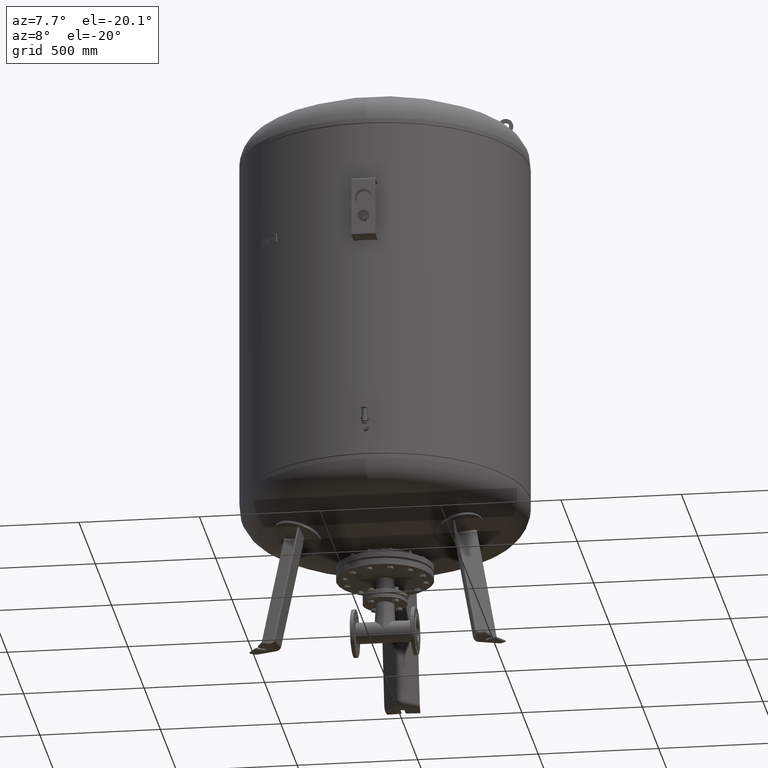
[diagram: clean part render]
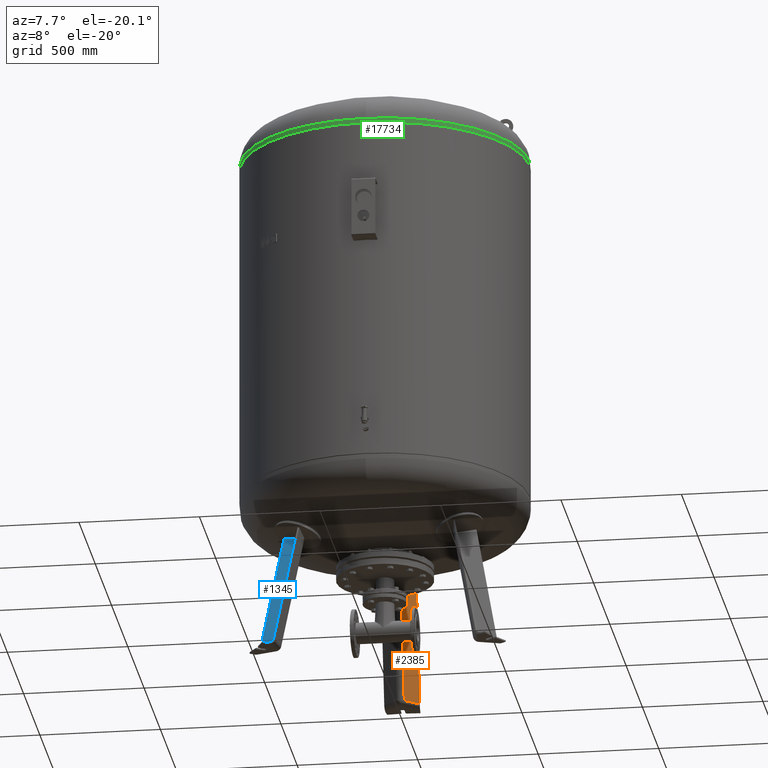
[diagram: same view with three faces highlighted in distinct colors, each labeled with its STEP entity id]
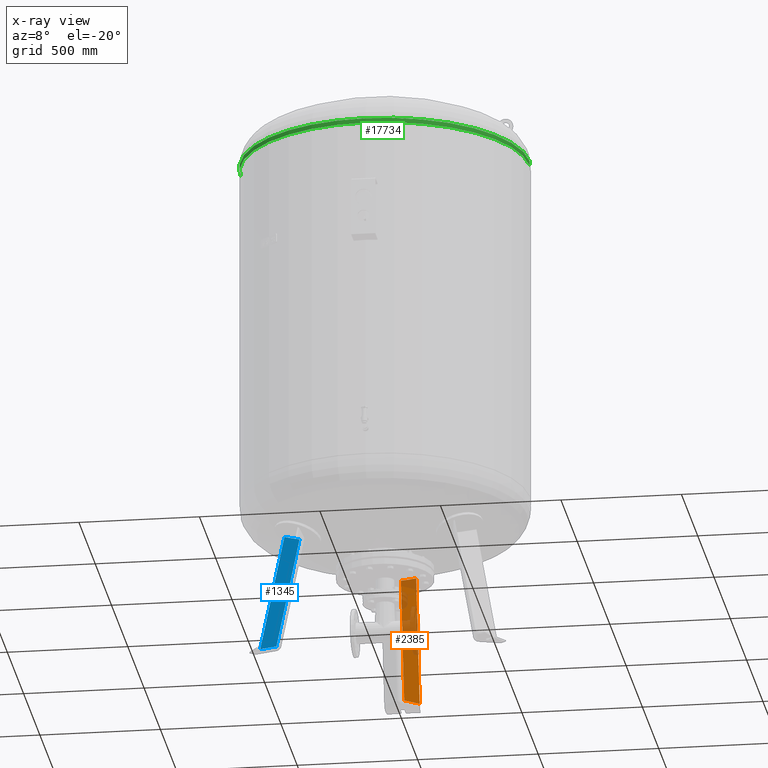
[diagram: x-ray of the same camera — body ghosted, the three highlighted faces saturated]
A machine part, auxiliary view with three faces highlighted in distinct colors.
The next image is the same camera in x-ray (body ghosted, the three faces saturated) — at least one of them is partly hidden behind the body in this view.
Their STEP definitions:

[orange] entity #2385 — the highlighted planar face has unit normal (0.6455, -0.7471, -0.1588).
#2238=CARTESIAN_POINT('',(16.136450826554498,366.118966807270510,507.262855992482800));
#2239=VERTEX_POINT('',#2238);
#2255=CARTESIAN_POINT('',(73.499999999999943,410.639984842271190,530.964625467244790));
#2256=VERTEX_POINT('',#2255);
#2257=CARTESIAN_POINT('',(73.499999999999943,410.639984842271190,530.964625467244790));
#2258=CARTESIAN_POINT('',(62.858036945115671,402.511835181547040,525.949831965368960));
#2259=CARTESIAN_POINT('',(52.229069748678569,394.323812316031930,521.269541988921900));
#2260=CARTESIAN_POINT('',(35.915460153680954,381.644042917188870,514.615776682243900));
#2261=CARTESIAN_POINT('',(30.188304126259531,377.170898528650180,512.381986610263770));
#2262=CARTESIAN_POINT('',(21.696926014053837,370.503142454935470,509.237729410371290));
#2263=CARTESIAN_POINT('',(18.913416046005374,368.311641721589750,508.234229947279740));
#2264=CARTESIAN_POINT('',(16.136450826554498,366.118966807270510,507.262855992482800));
#2265=B_SPLINE_CURVE_WITH_KNOTS('',3,(#2257,#2258,#2259,#2260,#2261,#2262,#2263,#2264),.UNSPECIFIED.,.F.,.U.,(4,2,2,4),(536.762478861198470,540.755951889067660,542.927906845961390,543.990518214376830),.UNSPECIFIED.);
#2266=EDGE_CURVE('',#2256,#2239,#2265,.T.);
#2325=CARTESIAN_POINT('',(73.500000000000000,519.029946471096990,21.029948423057292));
#2326=VERTEX_POINT('',#2325);
#2327=CARTESIAN_POINT('',(73.500000000000000,519.029946471096990,21.029948423057292));
#2328=DIRECTION('',(-1.090360E-016,-0.207911690817760,0.978147600733806));
#2329=VECTOR('',#2328,521.326921071661220);
#2330=LINE('',#2327,#2329);
#2331=EDGE_CURVE('',#2326,#2256,#2330,.T.);
#2362=CARTESIAN_POINT('',(73.500000000000000,532.326896435301360,-41.527282742766886));
#2363=DIRECTION('',(0.645458033062182,-0.747104967402683,-0.158802063077709));
#2364=DIRECTION('',(1.070315E-016,0.207911690817760,-0.978147600733806));
#2365=AXIS2_PLACEMENT_3D('',#2362,#2363,#2364);
#2366=PLANE('',#2365);
#2367=CARTESIAN_POINT('',(16.136450826554547,469.470961811045530,21.029948423057292));
#2368=VERTEX_POINT('',#2367);
#2369=CARTESIAN_POINT('',(16.136450826554547,469.470961811045530,21.029948423057292));
#2370=DIRECTION('',(-1.000572E-016,-0.207911690817760,0.978147600733805));
#2371=VECTOR('',#2370,497.095639967479310);
#2372=LINE('',#2369,#2371);
#2373=EDGE_CURVE('',#2368,#2239,#2372,.T.);
#2374=ORIENTED_EDGE('',*,*,#2373,.F.);
#2375=CARTESIAN_POINT('',(73.500000000000000,519.029946471096990,21.029948423057292));
#2376=DIRECTION('',(-0.756707249513243,-0.653753882232529,0.0));
#2377=VECTOR('',#2376,75.806792138366532);
#2378=LINE('',#2375,#2377);
#2379=EDGE_CURVE('',#2326,#2368,#2378,.T.);
#2380=ORIENTED_EDGE('',*,*,#2379,.F.);
#2381=ORIENTED_EDGE('',*,*,#2331,.T.);
#2382=ORIENTED_EDGE('',*,*,#2266,.T.);
#2383=EDGE_LOOP('',(#2374,#2380,#2381,#2382));
#2384=FACE_OUTER_BOUND('',#2383,.T.);
#2385=ADVANCED_FACE('',(#2384),#2366,.T.);

[blue] entity #1345 — the highlighted planar face has unit normal (-0.3243, -0.9325, 0.1588).
#1139=CARTESIAN_POINT('',(-420.404321888330460,-224.087779953756690,27.029948423057292));
#1140=VERTEX_POINT('',#1139);
#1212=CARTESIAN_POINT('',(-331.471886874801380,-172.742614659006900,510.149969666713160));
#1213=VERTEX_POINT('',#1212);
#1294=CARTESIAN_POINT('',(-397.884990698560960,-145.613083205598430,533.843746499036000));
#1295=VERTEX_POINT('',#1294);
#1303=CARTESIAN_POINT('',(-331.471886874801380,-172.742614659006900,510.149969666713160));
#1304=CARTESIAN_POINT('',(-333.488976274067340,-171.938159054882930,510.754973838816850));
#1305=CARTESIAN_POINT('',(-335.506731719872500,-171.131433109522730,511.371950061965830));
#1306=CARTESIAN_POINT('',(-344.335298495005020,-167.593311024787030,514.120476420435810));
#1307=CARTESIAN_POINT('',(-351.152787533789650,-164.839591880331110,516.369477981931820));
#1308=CARTESIAN_POINT('',(-371.293373231930840,-156.647038447854580,523.350498082422520));
#1309=CARTESIAN_POINT('',(-384.619296430347620,-151.152545046034220,528.403592446426050));
#1310=CARTESIAN_POINT('',(-397.884990698560960,-145.613083205598430,533.843746499036000));
#1311=B_SPLINE_CURVE_WITH_KNOTS('',3,(#1303,#1304,#1305,#1306,#1307,#1308,#1309,#1310),.UNSPECIFIED.,.F.,.U.,(4,2,2,4),(5.937335443723129,6.588195328792665,8.784260438390220,13.073486937020286),.UNSPECIFIED.);
#1312=EDGE_CURVE('',#1213,#1295,#1311,.T.);
#1317=CARTESIAN_POINT('',(-412.882795790844680,-238.377993293609340,-41.527282742766886));
#1318=DIRECTION('',(-0.324282864533178,-0.932535537409926,0.158802063077708));
#1319=DIRECTION('',(0.180056805991956,0.103955845408880,0.978147600733806));
#1320=AXIS2_PLACEMENT_3D('',#1317,#1318,#1319);
#1321=PLANE('',#1320);
#1322=CARTESIAN_POINT('',(-491.178961512120400,-199.476382368575910,27.029948423057292));
#1323=VERTEX_POINT('',#1322);
#1324=CARTESIAN_POINT('',(-491.178961512120400,-199.476382368575910,27.029948423057292));
#1325=DIRECTION('',(0.180056805991956,0.103955845408880,0.978147600733805));
#1326=VECTOR('',#1325,518.136319810800960);
#1327=LINE('',#1324,#1326);
#1328=EDGE_CURVE('',#1323,#1295,#1327,.T.);
#1329=ORIENTED_EDGE('',*,*,#1328,.F.);
#1330=CARTESIAN_POINT('',(-420.404321888330460,-224.087779953756690,27.029948423057292));
#1331=DIRECTION('',(-0.944521094592691,0.328450760190053,0.0));
#1332=VECTOR('',#1331,74.931772333057623);
#1333=LINE('',#1330,#1332);
#1334=EDGE_CURVE('',#1140,#1323,#1333,.T.);
#1335=ORIENTED_EDGE('',*,*,#1334,.F.);
#1336=CARTESIAN_POINT('',(-331.471886874801380,-172.742614659006900,510.149969666713160));
#1337=DIRECTION('',(-0.180056805991956,-0.103955845408880,-0.978147600733806));
#1338=VECTOR('',#1337,493.913209909444730);
#1339=LINE('',#1336,#1338);
#1340=EDGE_CURVE('',#1213,#1140,#1339,.T.);
#1341=ORIENTED_EDGE('',*,*,#1340,.F.);
#1342=ORIENTED_EDGE('',*,*,#1312,.T.);
#1343=EDGE_LOOP('',(#1329,#1335,#1341,#1342));
#1344=FACE_OUTER_BOUND('',#1343,.T.);
#1345=ADVANCED_FACE('',(#1344),#1321,.T.);

[green] entity #17734 — the highlighted cylindrical surface (partial cylindrical patch) has radius 600 mm, axis along (0, -0, -1).
#17075=CARTESIAN_POINT('',(600.000000000000110,-4.684274E-014,2164.0));
#17076=VERTEX_POINT('',#17075);
#17077=CARTESIAN_POINT('',(600.0,-4.336858E-014,2182.912457433727900));
#17078=VERTEX_POINT('',#17077);
#17079=CARTESIAN_POINT('',(600.000000000000110,-4.684274E-014,2164.0));
#17080=DIRECTION('',(0.0,0.0,1.0));
#17081=VECTOR('',#17080,18.912457433727923);
#17082=LINE('',#17079,#17081);
#17083=EDGE_CURVE('',#17076,#17078,#17082,.T.);
#17085=CARTESIAN_POINT('',(-599.999999999999890,2.663364E-014,2164.0));
#17086=VERTEX_POINT('',#17085);
#17094=CARTESIAN_POINT('',(-599.999999999999890,3.010780E-014,2182.912457433727500));
#17095=VERTEX_POINT('',#17094);
#17096=CARTESIAN_POINT('',(-599.999999999999890,2.663364E-014,2164.0));
#17097=DIRECTION('',(0.0,0.0,1.0));
#17098=VECTOR('',#17097,18.912457433727468);
#17099=LINE('',#17096,#17098);
#17100=EDGE_CURVE('',#17086,#17095,#17099,.T.);
#17126=CARTESIAN_POINT('',(4.214189E-014,-600.0,2182.912457433727500));
#17127=VERTEX_POINT('',#17126);
#17137=CARTESIAN_POINT('',(6.604942E-015,-4.336858E-014,2182.912457433727500));
#17138=DIRECTION('',(0.0,0.0,-1.0));
#17139=DIRECTION('',(1.0,0.0,0.0));
#17140=AXIS2_PLACEMENT_3D('',#17137,#17138,#17139);
#17141=CIRCLE('',#17140,600.0);
#17142=EDGE_CURVE('',#17078,#17127,#17141,.T.);
#17706=CARTESIAN_POINT('',(6.604942E-015,-4.336858E-014,2182.912457433727500));
#17707=DIRECTION('',(0.0,0.0,-1.0));
#17708=DIRECTION('',(1.0,0.0,0.0));
#17709=AXIS2_PLACEMENT_3D('',#17706,#17707,#17708);
#17710=CIRCLE('',#17709,600.0);
#17711=EDGE_CURVE('',#17127,#17095,#17710,.T.);
#17716=CARTESIAN_POINT('',(6.869496E-015,-4.510566E-014,2173.456228716863700));
#17717=DIRECTION('',(2.797667E-017,-1.836970E-016,-1.0));
#17718=DIRECTION('',(1.0,0.0,0.0));
#17719=AXIS2_PLACEMENT_3D('',#17716,#17717,#17718);
#17720=CYLINDRICAL_SURFACE('',#17719,599.999999999999890);
#17721=ORIENTED_EDGE('',*,*,#17083,.T.);
#17722=ORIENTED_EDGE('',*,*,#17142,.T.);
#17723=ORIENTED_EDGE('',*,*,#17711,.T.);
#17724=ORIENTED_EDGE('',*,*,#17100,.F.);
#17725=CARTESIAN_POINT('',(7.134050E-015,-4.684274E-014,2164.0));
#17726=DIRECTION('',(0.0,0.0,-1.0));
#17727=DIRECTION('',(1.0,0.0,0.0));
#17728=AXIS2_PLACEMENT_3D('',#17725,#17726,#17727);
#17729=CIRCLE('',#17728,600.0);
#17730=EDGE_CURVE('',#17076,#17086,#17729,.T.);
#17731=ORIENTED_EDGE('',*,*,#17730,.F.);
#17732=EDGE_LOOP('',(#17721,#17722,#17723,#17724,#17731));
#17733=FACE_OUTER_BOUND('',#17732,.T.);
#17734=ADVANCED_FACE('',(#17733),#17720,.T.);